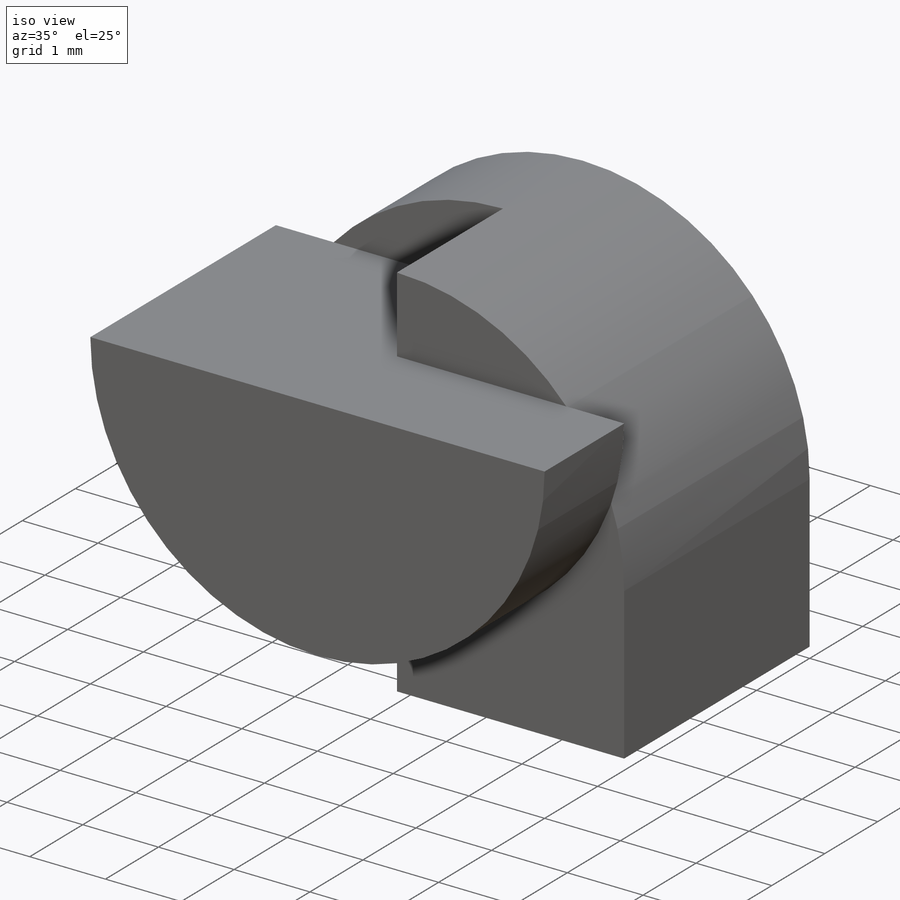
[diagram: iso view]
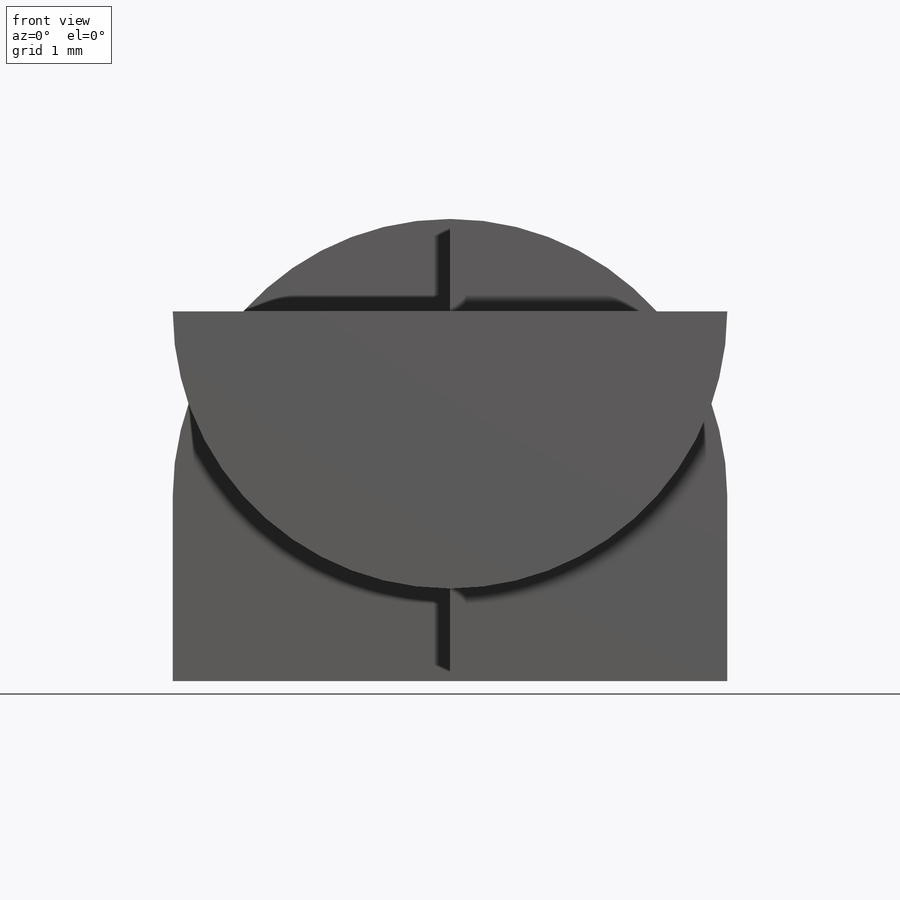
[diagram: front view]
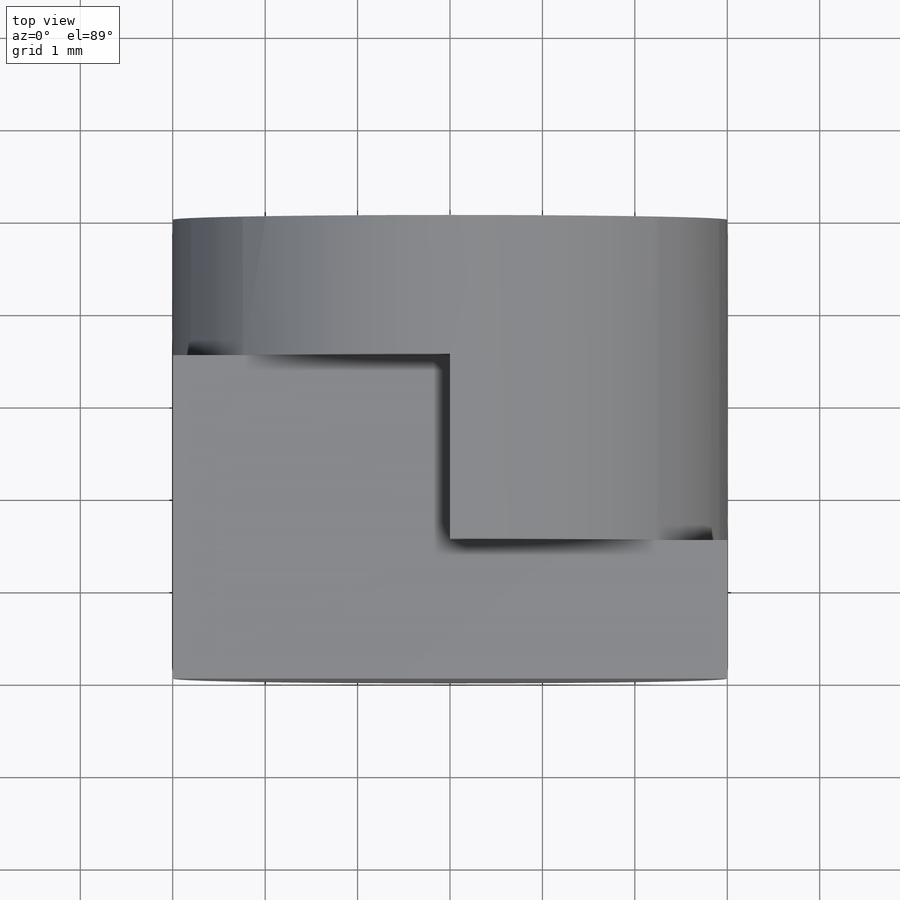
[diagram: top view]
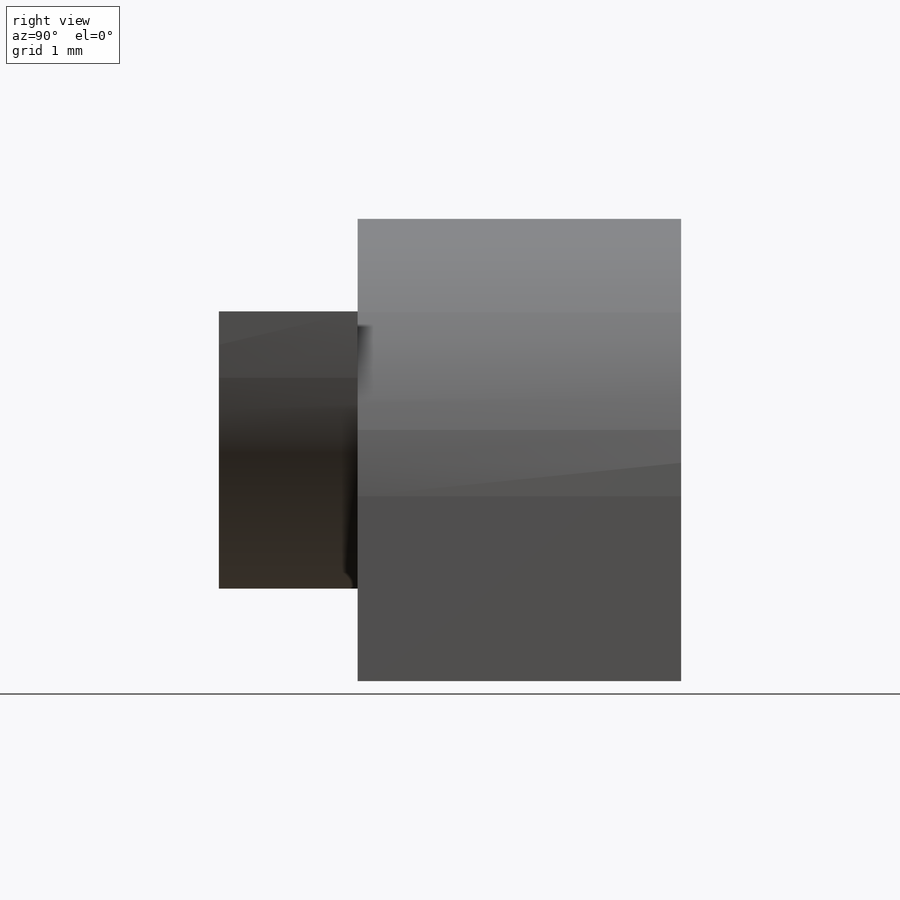
[diagram: right view]
SOLIDWORKS PART (.sldprt)
format: sldprt  version: not decoded by parser v0  size: 180,224 bytes
history: native  units: mm
features: sketch x4, extrude x2, cut_extrude x2, material x1 (+13 scaffold rows collapsed)
feature tree (22):
  scaffold x13  (default folders/planes/origin — collapsed)
  material  "Material <not specified>"
  sketch  "Sketch11"  dims[D1=3.0mm D2=2.0mm D3=6.0mm D4=2.0mm D5=3.0mm]
  extrude  "Boss-Extrude7"  Depth=3.5mm
  sketch  "Sketch12"  dims[D1=2.0mm]
  cut_extrude  "Cut-Extrude5"  Depth=5.5mm
  sketch  "Sketch13"  dims[D1=3.0mm D2=1.0mm D3=6.0mm]
  extrude  "Boss-Extrude8"  Depth=1.5mm
  sketch  "Sketch14"
  cut_extrude  "Cut-Extrude6"  Depth=2mm
decode coverage: 7 of 8 modeling features carry decoded parameters
note: suppression state not decoded; provenance and decode notes live in map.json
